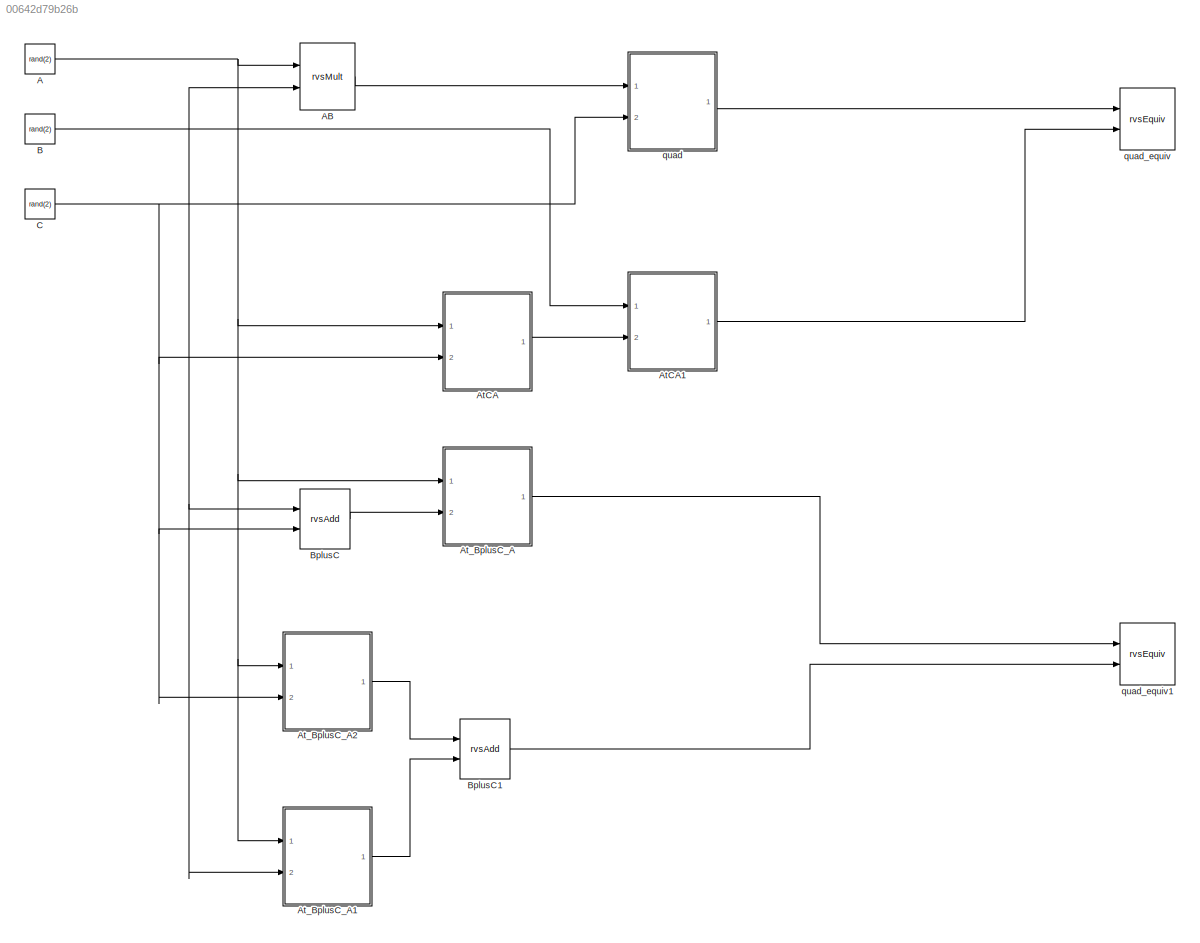
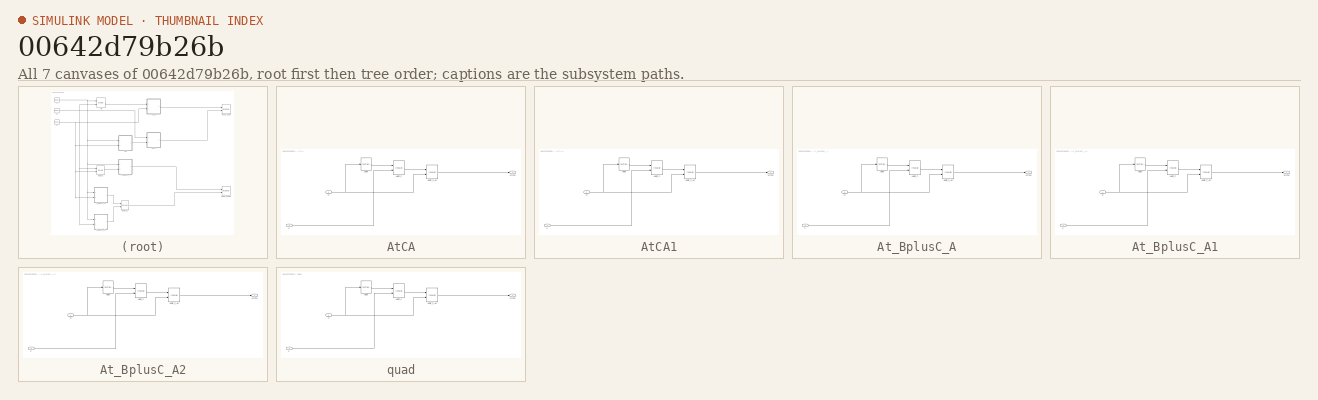
[diagram: thumbnail index - all 7 canvases of the model, root first then tree order]
MODEL slx_00642d79b26b
KIND model
CONFIG AbsTol = auto
CONFIG FixedStep = auto
CONFIG MaxStep = auto
CONFIG MinStep = auto
CONFIG RelTol = 1e-3
CONFIG SampleTimeConstraint = Unconstrained
CONFIG Solver = FixedStepDiscrete
CONFIG SolverMode = Auto
CONFIG SolverName = FixedStepDiscrete
CONFIG StartTime = 0.0
CONFIG StopTime = 10.0
BLOCK [Constant] A
  Value = rand(2)
BLOCK [Reference] AB  REF=rvs/rvsMult  (lib defined in slx_4df59143a37a)
  Ports = [2, 1]
  SourceBlock = rvs/rvsMult
  SourceType = rvsMult
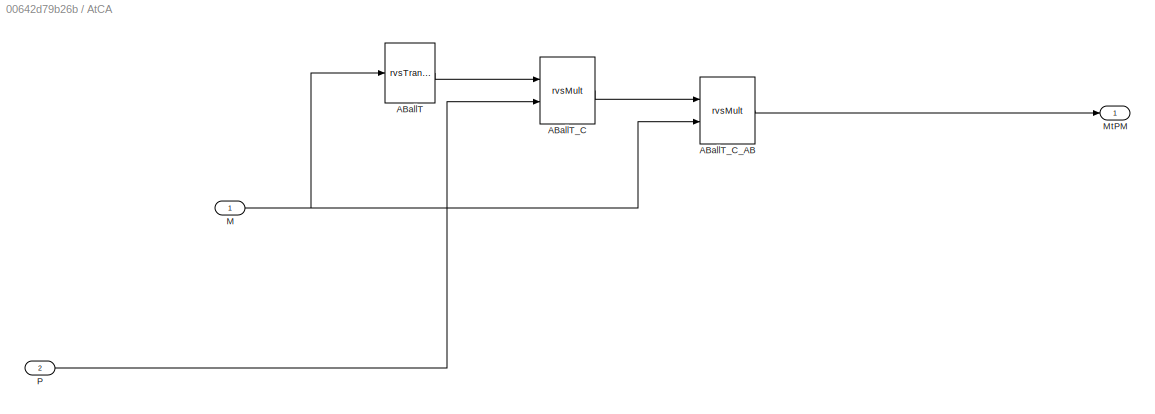
BLOCK [SubSystem] AtCA
  Ports = [2, 1]
  RequestExecContextInheritance = off
  Variant = off
BLOCK [Reference] AtCA/ABallT  REF=rvs/rvsTranspose  (lib defined in slx_4df59143a37a)
  Ports = [1, 1]
  SourceBlock = rvs/rvsTranspose
  SourceType = rvsTranspose
BLOCK [Reference] AtCA/ABallT_C  REF=rvs/rvsMult  (lib defined in slx_4df59143a37a)
  Ports = [2, 1]
  SourceBlock = rvs/rvsMult
  SourceType = rvsMult
BLOCK [Reference] AtCA/ABallT_C_AB  REF=rvs/rvsMult  (lib defined in slx_4df59143a37a)
  Ports = [2, 1]
  SourceBlock = rvs/rvsMult
  SourceType = rvsMult
BLOCK [Inport] AtCA/M
  IconDisplay = Port number
BLOCK [Outport] AtCA/MtPM
  IconDisplay = Port number
BLOCK [Inport] AtCA/P
  IconDisplay = Port number
  Port = 2
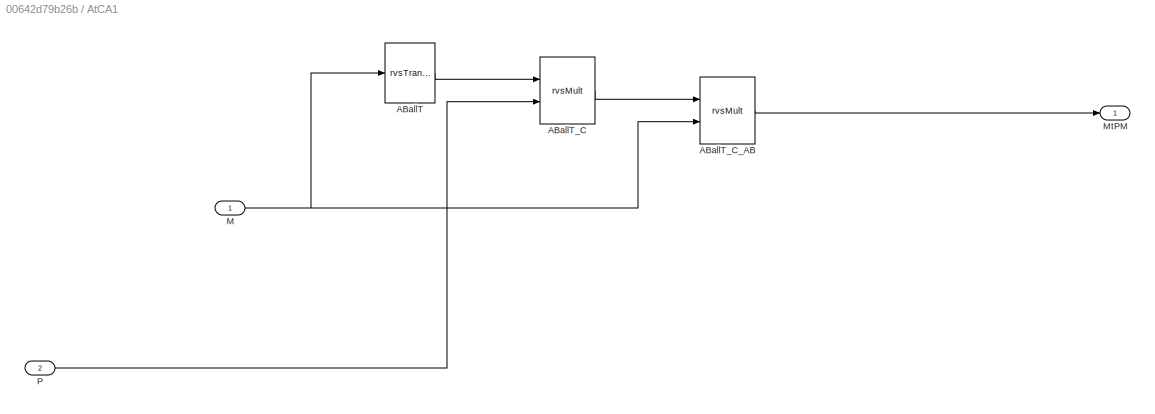
BLOCK [SubSystem] AtCA1
  Ports = [2, 1]
  RequestExecContextInheritance = off
  Variant = off
BLOCK [Reference] AtCA1/ABallT  REF=rvs/rvsTranspose  (lib defined in slx_4df59143a37a)
  Ports = [1, 1]
  SourceBlock = rvs/rvsTranspose
  SourceType = rvsTranspose
BLOCK [Reference] AtCA1/ABallT_C  REF=rvs/rvsMult  (lib defined in slx_4df59143a37a)
  Ports = [2, 1]
  SourceBlock = rvs/rvsMult
  SourceType = rvsMult
BLOCK [Reference] AtCA1/ABallT_C_AB  REF=rvs/rvsMult  (lib defined in slx_4df59143a37a)
  Ports = [2, 1]
  SourceBlock = rvs/rvsMult
  SourceType = rvsMult
BLOCK [Inport] AtCA1/M
  IconDisplay = Port number
BLOCK [Outport] AtCA1/MtPM
  IconDisplay = Port number
BLOCK [Inport] AtCA1/P
  IconDisplay = Port number
  Port = 2
BLOCK [SubSystem] At_BplusC_A
  Ports = [2, 1]
  RequestExecContextInheritance = off
  Variant = off
BLOCK [Reference] At_BplusC_A/ABallT  REF=rvs/rvsTranspose  (lib defined in slx_4df59143a37a)
  Ports = [1, 1]
  SourceBlock = rvs/rvsTranspose
  SourceType = rvsTranspose
BLOCK [Reference] At_BplusC_A/ABallT_C  REF=rvs/rvsMult  (lib defined in slx_4df59143a37a)
  Ports = [2, 1]
  SourceBlock = rvs/rvsMult
  SourceType = rvsMult
BLOCK [Reference] At_BplusC_A/ABallT_C_AB  REF=rvs/rvsMult  (lib defined in slx_4df59143a37a)
  Ports = [2, 1]
  SourceBlock = rvs/rvsMult
  SourceType = rvsMult
BLOCK [Inport] At_BplusC_A/M
  IconDisplay = Port number
BLOCK [Outport] At_BplusC_A/MtPM
  IconDisplay = Port number
BLOCK [Inport] At_BplusC_A/P
  IconDisplay = Port number
  Port = 2
BLOCK [SubSystem] At_BplusC_A1
  Ports = [2, 1]
  RequestExecContextInheritance = off
  Variant = off
BLOCK [Reference] At_BplusC_A1/ABallT  REF=rvs/rvsTranspose  (lib defined in slx_4df59143a37a)
  Ports = [1, 1]
  SourceBlock = rvs/rvsTranspose
  SourceType = rvsTranspose
BLOCK [Reference] At_BplusC_A1/ABallT_C  REF=rvs/rvsMult  (lib defined in slx_4df59143a37a)
  Ports = [2, 1]
  SourceBlock = rvs/rvsMult
  SourceType = rvsMult
BLOCK [Reference] At_BplusC_A1/ABallT_C_AB  REF=rvs/rvsMult  (lib defined in slx_4df59143a37a)
  Ports = [2, 1]
  SourceBlock = rvs/rvsMult
  SourceType = rvsMult
BLOCK [Inport] At_BplusC_A1/M
  IconDisplay = Port number
BLOCK [Outport] At_BplusC_A1/MtPM
  IconDisplay = Port number
BLOCK [Inport] At_BplusC_A1/P
  IconDisplay = Port number
  Port = 2
BLOCK [SubSystem] At_BplusC_A2
  Ports = [2, 1]
  RequestExecContextInheritance = off
  Variant = off
BLOCK [Reference] At_BplusC_A2/ABallT  REF=rvs/rvsTranspose  (lib defined in slx_4df59143a37a)
  Ports = [1, 1]
  SourceBlock = rvs/rvsTranspose
  SourceType = rvsTranspose
BLOCK [Reference] At_BplusC_A2/ABallT_C  REF=rvs/rvsMult  (lib defined in slx_4df59143a37a)
  Ports = [2, 1]
  SourceBlock = rvs/rvsMult
  SourceType = rvsMult
BLOCK [Reference] At_BplusC_A2/ABallT_C_AB  REF=rvs/rvsMult  (lib defined in slx_4df59143a37a)
  Ports = [2, 1]
  SourceBlock = rvs/rvsMult
  SourceType = rvsMult
BLOCK [Inport] At_BplusC_A2/M
  IconDisplay = Port number
BLOCK [Outport] At_BplusC_A2/MtPM
  IconDisplay = Port number
BLOCK [Inport] At_BplusC_A2/P
  IconDisplay = Port number
  Port = 2
BLOCK [Constant] B
  Value = rand(2)
BLOCK [Reference] BplusC  REF=rvs/rvsAdd  (lib defined in slx_4df59143a37a)
  Ports = [2, 1]
  SourceBlock = rvs/rvsAdd
  SourceType = rvsAdd
BLOCK [Reference] BplusC1  REF=rvs/rvsAdd  (lib defined in slx_4df59143a37a)
  Ports = [2, 1]
  SourceBlock = rvs/rvsAdd
  SourceType = rvsAdd
BLOCK [Constant] C
  Value = rand(2)
BLOCK [SubSystem] quad
  Ports = [2, 1]
  RequestExecContextInheritance = off
  Variant = off
BLOCK [Reference] quad/ABallT  REF=rvs/rvsTranspose  (lib defined in slx_4df59143a37a)
  Ports = [1, 1]
  SourceBlock = rvs/rvsTranspose
  SourceType = rvsTranspose
BLOCK [Reference] quad/ABallT_C  REF=rvs/rvsMult  (lib defined in slx_4df59143a37a)
  Ports = [2, 1]
  SourceBlock = rvs/rvsMult
  SourceType = rvsMult
BLOCK [Reference] quad/ABallT_C_AB  REF=rvs/rvsMult  (lib defined in slx_4df59143a37a)
  Ports = [2, 1]
  SourceBlock = rvs/rvsMult
  SourceType = rvsMult
BLOCK [Inport] quad/M
  IconDisplay = Port number
BLOCK [Outport] quad/MtPM
  IconDisplay = Port number
BLOCK [Inport] quad/P
  IconDisplay = Port number
  Port = 2
BLOCK [Reference] quad_equiv  REF=rvs/rvsEquiv  (lib defined in slx_4df59143a37a)
  Ports = [2]
  SourceBlock = rvs/rvsEquiv
  SourceType = rvsEquiv
BLOCK [Reference] quad_equiv1  REF=rvs/rvsEquiv  (lib defined in slx_4df59143a37a)
  Ports = [2]
  SourceBlock = rvs/rvsEquiv
  SourceType = rvsEquiv
NET A:1 -> AB:1, AtCA:1, At_BplusC_A1:1, At_BplusC_A2:1, At_BplusC_A:1
LINE AB:1 -> quad:1
LINE AtCA/ABallT:1 -> AtCA/ABallT_C:1
LINE AtCA/ABallT_C:1 -> AtCA/ABallT_C_AB:1
LINE AtCA/ABallT_C_AB:1 -> AtCA/MtPM:1
NET AtCA/M:1 -> AtCA/ABallT:1, AtCA/ABallT_C_AB:2
LINE AtCA/P:1 -> AtCA/ABallT_C:2
LINE AtCA1/ABallT:1 -> AtCA1/ABallT_C:1
LINE AtCA1/ABallT_C:1 -> AtCA1/ABallT_C_AB:1
LINE AtCA1/ABallT_C_AB:1 -> AtCA1/MtPM:1
NET AtCA1/M:1 -> AtCA1/ABallT:1, AtCA1/ABallT_C_AB:2
LINE AtCA1/P:1 -> AtCA1/ABallT_C:2
LINE AtCA1:1 -> quad_equiv:2
LINE AtCA:1 -> AtCA1:2
LINE At_BplusC_A/ABallT:1 -> At_BplusC_A/ABallT_C:1
LINE At_BplusC_A/ABallT_C:1 -> At_BplusC_A/ABallT_C_AB:1
LINE At_BplusC_A/ABallT_C_AB:1 -> At_BplusC_A/MtPM:1
NET At_BplusC_A/M:1 -> At_BplusC_A/ABallT:1, At_BplusC_A/ABallT_C_AB:2
LINE At_BplusC_A/P:1 -> At_BplusC_A/ABallT_C:2
LINE At_BplusC_A1/ABallT:1 -> At_BplusC_A1/ABallT_C:1
LINE At_BplusC_A1/ABallT_C:1 -> At_BplusC_A1/ABallT_C_AB:1
LINE At_BplusC_A1/ABallT_C_AB:1 -> At_BplusC_A1/MtPM:1
NET At_BplusC_A1/M:1 -> At_BplusC_A1/ABallT:1, At_BplusC_A1/ABallT_C_AB:2
LINE At_BplusC_A1/P:1 -> At_BplusC_A1/ABallT_C:2
LINE At_BplusC_A1:1 -> BplusC1:2
LINE At_BplusC_A2/ABallT:1 -> At_BplusC_A2/ABallT_C:1
LINE At_BplusC_A2/ABallT_C:1 -> At_BplusC_A2/ABallT_C_AB:1
LINE At_BplusC_A2/ABallT_C_AB:1 -> At_BplusC_A2/MtPM:1
NET At_BplusC_A2/M:1 -> At_BplusC_A2/ABallT:1, At_BplusC_A2/ABallT_C_AB:2
LINE At_BplusC_A2/P:1 -> At_BplusC_A2/ABallT_C:2
LINE At_BplusC_A2:1 -> BplusC1:1
LINE At_BplusC_A:1 -> quad_equiv1:1
NET B:1 -> AB:2, AtCA1:1, At_BplusC_A1:2, BplusC:1
LINE BplusC1:1 -> quad_equiv1:2
LINE BplusC:1 -> At_BplusC_A:2
NET C:1 -> AtCA:2, At_BplusC_A2:2, BplusC:2, quad:2
LINE quad/ABallT:1 -> quad/ABallT_C:1
LINE quad/ABallT_C:1 -> quad/ABallT_C_AB:1
LINE quad/ABallT_C_AB:1 -> quad/MtPM:1
NET quad/M:1 -> quad/ABallT:1, quad/ABallT_C_AB:2
LINE quad/P:1 -> quad/ABallT_C:2
LINE quad:1 -> quad_equiv:1
note: NET lines group one-source signal fan-out (src -> all destinations, sorted); 1:1 wires keep LINE
